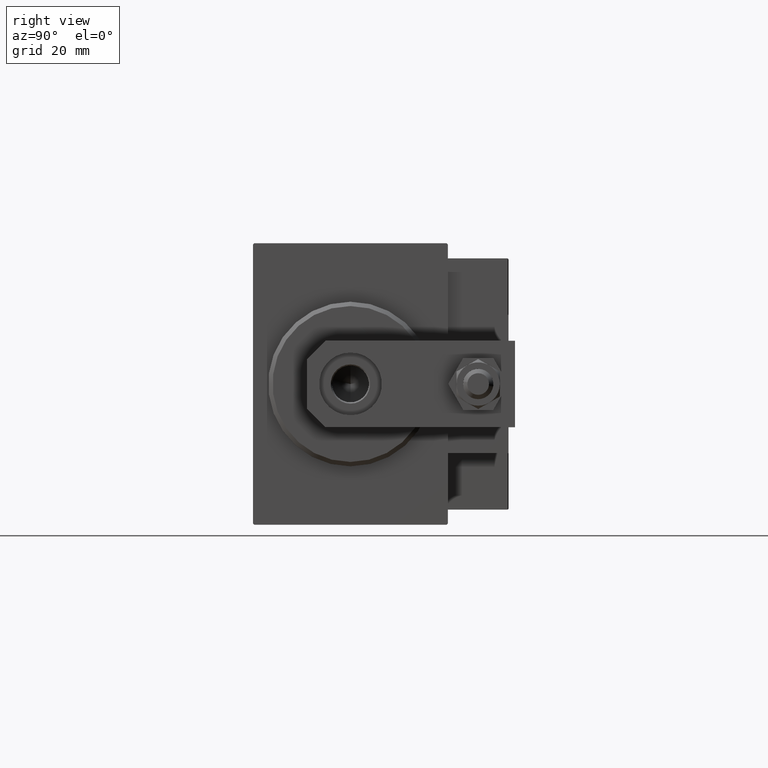
[diagram: clean part render]
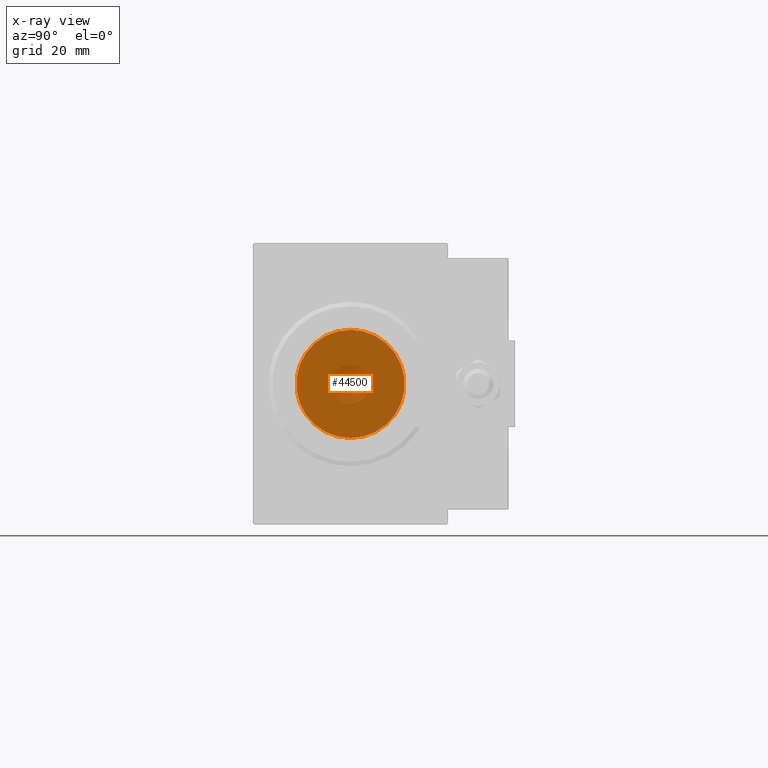
[diagram: x-ray — body ghosted, one internal face saturated and labeled with its STEP entity id]
A machine part, right view, then the same camera in x-ray: the body is ghosted and one INTERNAL B-rep face — a face not visible from any outside direction — is saturated and labeled: STEP entity #44500.
In plain terms, the highlighted planar face has unit normal (1, 0, -0).
Its self-contained STEP definition (entity closure, byte-faithful):
#5371 = ORIENTED_EDGE ( 'NONE', *, *, #11651, .T. ) ;
#6091 = CIRCLE ( 'NONE', #10137, 12.50000000000000000 ) ;
#10137 = AXIS2_PLACEMENT_3D ( 'NONE', #36123, #24539, #48473 ) ;
#11579 = DIRECTION ( 'NONE',  ( 0.000000000000000000, 0.000000000000000000, 1.000000000000000000 ) ) ;
#11601 = VERTEX_POINT ( 'NONE', #18079 ) ;
#11651 = EDGE_CURVE ( 'NONE', #11601, #17940, #49663, .T. ) ;
#14040 = CARTESIAN_POINT ( 'NONE',  ( 64.00000000000000000, 1.530808498934191521E-15, -12.50000000000000000 ) ) ;
#15791 = DIRECTION ( 'NONE',  ( 0.000000000000000000, 0.000000000000000000, 1.000000000000000000 ) ) ;
#17940 = VERTEX_POINT ( 'NONE', #14040 ) ;
#18079 = CARTESIAN_POINT ( 'NONE',  ( 64.00000000000000000, 0.000000000000000000, 12.50000000000000000 ) ) ;
#22315 = AXIS2_PLACEMENT_3D ( 'NONE', #30151, #42486, #15791 ) ;
#23402 = EDGE_CURVE ( 'NONE', #17940, #11601, #6091, .T. ) ;
#24539 = DIRECTION ( 'NONE',  ( -1.000000000000000000, 0.000000000000000000, 0.000000000000000000 ) ) ;
#26212 = DIRECTION ( 'NONE',  ( -1.000000000000000000, 0.000000000000000000, 0.000000000000000000 ) ) ;
#30151 = CARTESIAN_POINT ( 'NONE',  ( 64.00000000000000000, 0.000000000000000000, 0.000000000000000000 ) ) ;
#34513 = CARTESIAN_POINT ( 'NONE',  ( 64.00000000000000000, 0.000000000000000000, 0.000000000000000000 ) ) ;
#35671 = AXIS2_PLACEMENT_3D ( 'NONE', #34513, #26212, #11579 ) ;
#36123 = CARTESIAN_POINT ( 'NONE',  ( 64.00000000000000000, 0.000000000000000000, 0.000000000000000000 ) ) ;
#37967 = ORIENTED_EDGE ( 'NONE', *, *, #23402, .T. ) ;
#42486 = DIRECTION ( 'NONE',  ( -1.000000000000000000, 0.000000000000000000, 0.000000000000000000 ) ) ;
#42570 = EDGE_LOOP ( 'NONE', ( #5371, #37967 ) ) ;
#44500 = ADVANCED_FACE ( 'NONE', ( #45385 ), #45633, .T. ) ;
#45385 = FACE_OUTER_BOUND ( 'NONE', #42570, .T. ) ;
#45633 = PLANE ( 'NONE',  #35671 ) ;
#48473 = DIRECTION ( 'NONE',  ( 0.000000000000000000, 0.000000000000000000, 1.000000000000000000 ) ) ;
#49663 = CIRCLE ( 'NONE', #22315, 12.50000000000000000 ) ;